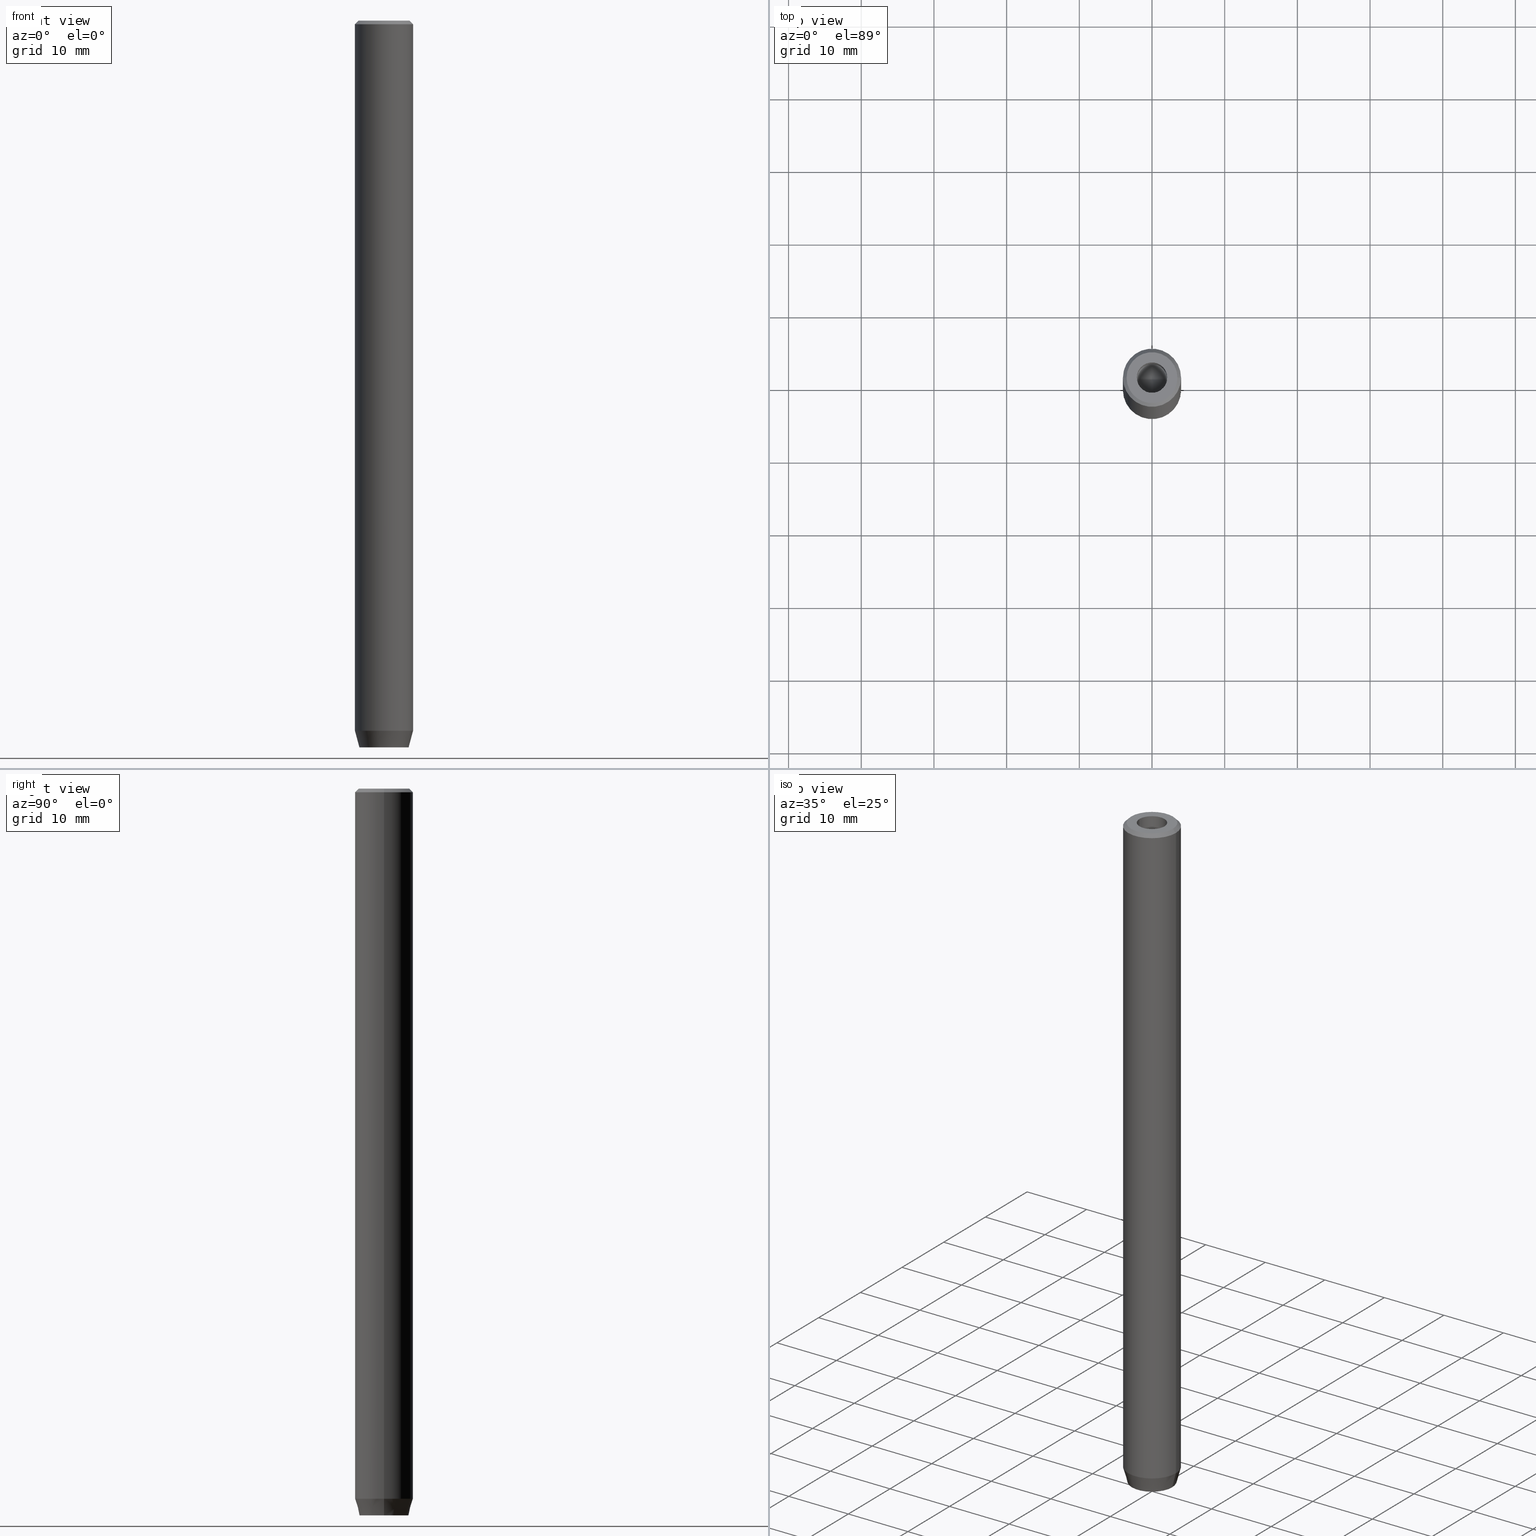
[diagram: canonical four-view strip — front | top / right | iso, engineering-drawing reading convention]
A machine part, canonical four-view strip (front | top / right | iso — engineering-drawing reading convention). The complete STEP part file that produces these views, byte-faithful:
ISO-10303-21;
HEADER;
FILE_DESCRIPTION (( 'STEP AP203' ),
    '1' );
FILE_NAME ('45e9.STEP',
    '2024-01-02T23:08:19',
    ( '' ),
    ( '' ),
    'SwSTEP 2.0',
    'SolidWorks 2019',
    '' );
FILE_SCHEMA (( 'CONFIG_CONTROL_DESIGN' ));
ENDSEC;

DATA;
#1 = PERSON_AND_ORGANIZATION ( #509, #557 ) ;
#2 = ORIENTED_EDGE ( 'NONE', *, *, #280, .T. ) ;
#3 = AXIS2_PLACEMENT_3D ( 'NONE', #445, #170, #305 ) ;
#4 = EDGE_CURVE ( 'NONE', #224, #239, #467, .T. ) ;
#5 = DIRECTION ( 'NONE',  ( -0.8660254037844388186, -0.4999999999999996114, 0.000000000000000000 ) ) ;
#6 = VERTEX_POINT ( 'NONE', #576 ) ;
#7 = EDGE_LOOP ( 'NONE', ( #94, #96, #442, #324 ) ) ;
#8 = VERTEX_POINT ( 'NONE', #33 ) ;
#9 = ORIENTED_EDGE ( 'NONE', *, *, #221, .F. ) ;
#10 = EDGE_CURVE ( 'NONE', #6, #460, #334, .T. ) ;
#11 = CARTESIAN_POINT ( 'NONE',  ( 3.500000000000016875, 4.592425496802584819E-16, 0.000000000000000000 ) ) ;
#12 = AXIS2_PLACEMENT_3D ( 'NONE', #235, #277, #195 ) ;
#13 = VECTOR ( 'NONE', #179, 1000.000000000000000 ) ;
#14 = LINE ( 'NONE', #104, #549 ) ;
#15 = CARTESIAN_POINT ( 'NONE',  ( 2.000000000000000888, -1.154700538379252572, -100.0000000000000000 ) ) ;
#16 = PLANE ( 'NONE',  #199 ) ;
#17 = CARTESIAN_POINT ( 'NONE',  ( 1.000000000000000444, 1.732050807568877637, -97.20000000000000284 ) ) ;
#18 = CARTESIAN_POINT ( 'NONE',  ( -2.099999999999996980, 2.571758278209438013E-16, -12.50000000000000000 ) ) ;
#19 = CC_DESIGN_PERSON_AND_ORGANIZATION_ASSIGNMENT ( #190, #53, ( #125 ) ) ;
#20 = ORIENTED_EDGE ( 'NONE', *, *, #569, .F. ) ;
#21 = APPLICATION_CONTEXT ( 'configuration controlled 3d designs of mechanical parts and assemblies' ) ;
#22 = DIRECTION ( 'NONE',  ( 5.633679745264339711E-16, 1.000000000000000000, 0.000000000000000000 ) ) ;
#23 = DIRECTION ( 'NONE',  ( -0.8660254037844385966, 0.5000000000000001110, 0.000000000000000000 ) ) ;
#24 = CARTESIAN_POINT ( 'NONE',  ( 2.168404344971008868E-16, -2.309401076758503812, -97.20000000000000284 ) ) ;
#25 = ORIENTED_EDGE ( 'NONE', *, *, #40, .T. ) ;
#26 = ADVANCED_FACE ( 'NONE', ( #380 ), #16, .F. ) ;
#27 = FACE_OUTER_BOUND ( 'NONE', #7, .T. ) ;
#28 = AXIS2_PLACEMENT_3D ( 'NONE', #297, #523, #111 ) ;
#29 = CARTESIAN_POINT ( 'NONE',  ( 3.500000000000016875, 4.286263797015757302E-16, 0.000000000000000000 ) ) ;
#30 = DIRECTION ( 'NONE',  ( 1.000000000000000000, 0.000000000000000000, 0.000000000000000000 ) ) ;
#31 = ORIENTED_EDGE ( 'NONE', *, *, #444, .T. ) ;
#32 = MANIFOLD_SOLID_BREP ( 'Vrt�k z�vitn�ku pro M5 z�vit1', #302 ) ;
#33 = CARTESIAN_POINT ( 'NONE',  ( -4.000000000000000000, 4.898587196589412829E-16, -97.70000000000000284 ) ) ;
#34 = CARTESIAN_POINT ( 'NONE',  ( 1.000000000000000444, 1.732050807568877637, -97.20000000000000284 ) ) ;
#35 = VECTOR ( 'NONE', #22, 1000.000000000000000 ) ;
#36 = VERTEX_POINT ( 'NONE', #216 ) ;
#37 = LINE ( 'NONE', #132, #329 ) ;
#38 = ORIENTED_EDGE ( 'NONE', *, *, #530, .T. ) ;
#39 = VERTEX_POINT ( 'NONE', #18 ) ;
#40 = EDGE_CURVE ( 'NONE', #460, #314, #518, .T. ) ;
#41 = EDGE_LOOP ( 'NONE', ( #175, #351, #395 ) ) ;
#42 = LINE ( 'NONE', #34, #347 ) ;
#43 = APPROVAL_ROLE ( '' ) ;
#44 = EDGE_CURVE ( 'NONE', #573, #8, #208, .T. ) ;
#45 = CONICAL_SURFACE ( 'NONE', #168, 4.000000000000000000, 0.2617993877991497964 ) ;
#46 = DIRECTION ( 'NONE',  ( -0.000000000000000000, -0.000000000000000000, 1.000000000000000000 ) ) ;
#47 = CC_DESIGN_APPROVAL ( #430, ( #456 ) ) ;
#48 = AXIS2_PLACEMENT_3D ( 'NONE', #159, #493, #521 ) ;
#49 = DIRECTION ( 'NONE',  ( 1.000000000000000000, 0.000000000000000000, 0.000000000000000000 ) ) ;
#50 = AXIS2_PLACEMENT_3D ( 'NONE', #526, #377, #477 ) ;
#51 = DATE_AND_TIME ( #325, #147 ) ;
#52 = ADVANCED_BREP_SHAPE_REPRESENTATION ( '45e9', ( #32, #110 ), #220 ) ;
#53 = PERSON_AND_ORGANIZATION_ROLE ( 'design_owner' ) ;
#54 = ADVANCED_FACE ( 'NONE', ( #390 ), #310, .T. ) ;
#55 = PERSON_AND_ORGANIZATION ( #509, #557 ) ;
#56 = ORIENTED_EDGE ( 'NONE', *, *, #10, .T. ) ;
#57 = CIRCLE ( 'NONE', #3, 3.383716857408417766 ) ;
#58 = AXIS2_PLACEMENT_3D ( 'NONE', #212, #288, #343 ) ;
#59 = DATE_AND_TIME ( #135, #78 ) ;
#60 = ORIENTED_EDGE ( 'NONE', *, *, #308, .T. ) ;
#61 = EDGE_LOOP ( 'NONE', ( #450, #164, #9, #249 ) ) ;
#62 = DIRECTION ( 'NONE',  ( -0.000000000000000000, -0.000000000000000000, 1.000000000000000000 ) ) ;
#63 = ADVANCED_FACE ( 'NONE', ( #163 ), #482, .T. ) ;
#64 = PLANE ( 'NONE',  #79 ) ;
#65 = AXIS2_PLACEMENT_3D ( 'NONE', #172, #499, #268 ) ;
#66 = AXIS2_PLACEMENT_3D ( 'NONE', #223, #503, #495 ) ;
#67 = LINE ( 'NONE', #426, #440 ) ;
#68 = CARTESIAN_POINT ( 'NONE',  ( 2.099999999999996980, 0.000000000000000000, -12.50000000000000000 ) ) ;
#69 = ORIENTED_EDGE ( 'NONE', *, *, #4, .F. ) ;
#70 = FACE_OUTER_BOUND ( 'NONE', #381, .T. ) ;
#71 = DIRECTION ( 'NONE',  ( -0.000000000000000000, -0.000000000000000000, 1.000000000000000000 ) ) ;
#72 = ADVANCED_FACE ( 'NONE', ( #114 ), #244, .F. ) ;
#73 = CARTESIAN_POINT ( 'NONE',  ( -1.999999999999997780, 1.154700538379253238, -97.20000000000000284 ) ) ;
#74 = CARTESIAN_POINT ( 'NONE',  ( 0.000000000000000000, 0.000000000000000000, -12.50000000000000000 ) ) ;
#75 = ADVANCED_FACE ( 'NONE', ( #118 ), #441, .F. ) ;
#76 = DIRECTION ( 'NONE',  ( -0.5000000000000000000, -0.8660254037844387076, 0.000000000000000000 ) ) ;
#77 = VERTEX_POINT ( 'NONE', #454 ) ;
#78 = LOCAL_TIME ( 0, 8, 19.00000000000000000, #231 ) ;
#79 = AXIS2_PLACEMENT_3D ( 'NONE', #379, #559, #561 ) ;
#80 = CARTESIAN_POINT ( 'NONE',  ( -1.999999999999997780, 1.154700538379253238, -97.20000000000000284 ) ) ;
#81 = DIRECTION ( 'NONE',  ( 0.000000000000000000, 0.000000000000000000, -1.000000000000000000 ) ) ;
#82 = ORIENTED_EDGE ( 'NONE', *, *, #40, .F. ) ;
#83 = CARTESIAN_POINT ( 'NONE',  ( -3.500000000000016875, 0.000000000000000000, 0.000000000000000000 ) ) ;
#84 = DIRECTION ( 'NONE',  ( 0.000000000000000000, -0.000000000000000000, 1.000000000000000000 ) ) ;
#85 = CIRCLE ( 'NONE', #263, 2.099999999999996980 ) ;
#86 = DIRECTION ( 'NONE',  ( -1.000000000000000000, 0.000000000000000000, 0.000000000000000000 ) ) ;
#87 = ORIENTED_EDGE ( 'NONE', *, *, #153, .T. ) ;
#88 = PERSON_AND_ORGANIZATION_ROLE ( 'design_supplier' ) ;
#89 = FACE_OUTER_BOUND ( 'NONE', #556, .T. ) ;
#90 = ORIENTED_EDGE ( 'NONE', *, *, #221, .T. ) ;
#91 = FACE_OUTER_BOUND ( 'NONE', #404, .T. ) ;
#92 = VECTOR ( 'NONE', #5, 1000.000000000000114 ) ;
#93 = EDGE_CURVE ( 'NONE', #77, #192, #169, .T. ) ;
#94 = ORIENTED_EDGE ( 'NONE', *, *, #308, .F. ) ;
#95 = SECURITY_CLASSIFICATION_LEVEL ( 'unclassified' ) ;
#96 = ORIENTED_EDGE ( 'NONE', *, *, #575, .T. ) ;
#97 = DIRECTION ( 'NONE',  ( 0.000000000000000000, -1.000000000000000000, 0.000000000000000000 ) ) ;
#98 = APPROVAL_ROLE ( '' ) ;
#99 = VERTEX_POINT ( 'NONE', #306 ) ;
#100 = VECTOR ( 'NONE', #140, 999.9999999999998863 ) ;
#101 = ORIENTED_EDGE ( 'NONE', *, *, #335, .F. ) ;
#102 = CARTESIAN_POINT ( 'NONE',  ( 0.000000000000000000, 0.000000000000000000, -1.990051048614449116E-16 ) ) ;
#103 = ADVANCED_FACE ( 'NONE', ( #541, #451 ), #311, .T. ) ;
#104 = CARTESIAN_POINT ( 'NONE',  ( -4.000000000000000000, 4.898587196589412829E-16, 0.000000000000000000 ) ) ;
#105 = DIRECTION ( 'NONE',  ( 0.7071067811865376918, 8.659560562354813296E-17, -0.7071067811865574537 ) ) ;
#106 = CARTESIAN_POINT ( 'NONE',  ( 0.000000000000000000, 0.000000000000000000, -97.70000000000000284 ) ) ;
#107 = DIRECTION ( 'NONE',  ( 1.000000000000000000, 0.000000000000000000, 0.000000000000000000 ) ) ;
#108 = LOCAL_TIME ( 0, 8, 19.00000000000000000, #357 ) ;
#109 = DIRECTION ( 'NONE',  ( -0.000000000000000000, -0.000000000000000000, -1.000000000000000000 ) ) ;
#110 = AXIS2_PLACEMENT_3D ( 'NONE', #139, #550, #461 ) ;
#111 = DIRECTION ( 'NONE',  ( -1.000000000000000000, 0.000000000000000000, 0.000000000000000000 ) ) ;
#112 = APPROVAL ( #452, 'NEUR�EN�' ) ;
#113 = LINE ( 'NONE', #250, #316 ) ;
#114 = FACE_OUTER_BOUND ( 'NONE', #230, .T. ) ;
#115 = VERTEX_POINT ( 'NONE', #501 ) ;
#116 = DIRECTION ( 'NONE',  ( 1.000000000000000000, 0.000000000000000000, 0.000000000000000000 ) ) ;
#117 = CARTESIAN_POINT ( 'NONE',  ( -1.999999999999998668, -1.154700538379252572, -100.0000000000000000 ) ) ;
#118 = FACE_OUTER_BOUND ( 'NONE', #181, .T. ) ;
#119 = ORIENTED_EDGE ( 'NONE', *, *, #44, .T. ) ;
#120 = LINE ( 'NONE', #68, #278 ) ;
#121 = VECTOR ( 'NONE', #436, 1000.000000000000114 ) ;
#122 = DIRECTION ( 'NONE',  ( 1.000000000000000000, 0.000000000000000000, 0.000000000000000000 ) ) ;
#123 = AXIS2_PLACEMENT_3D ( 'NONE', #102, #438, #154 ) ;
#124 = CARTESIAN_POINT ( 'NONE',  ( 0.000000000000000000, 0.000000000000000000, 0.000000000000000000 ) ) ;
#125 = PRODUCT ( '45e9', '45e9', '', ( #365 ) ) ;
#126 =( LENGTH_UNIT ( ) NAMED_UNIT ( * ) SI_UNIT ( .MILLI., .METRE. ) );
#127 = ORIENTED_EDGE ( 'NONE', *, *, #174, .F. ) ;
#128 = ORIENTED_EDGE ( 'NONE', *, *, #371, .F. ) ;
#129 = ADVANCED_FACE ( 'NONE', ( #91 ), #241, .T. ) ;
#130 = APPROVAL_DATE_TIME ( #227, #191 ) ;
#131 = VERTEX_POINT ( 'NONE', #356 ) ;
#132 = CARTESIAN_POINT ( 'NONE',  ( 1.000000000000000444, 1.732050807568877637, -100.0000000000000000 ) ) ;
#133 = VERTEX_POINT ( 'NONE', #260 ) ;
#134 = CC_DESIGN_DATE_AND_TIME_ASSIGNMENT ( #51, #313, ( #504 ) ) ;
#135 = CALENDAR_DATE ( 2024, 3, 1 ) ;
#136 = VECTOR ( 'NONE', #341, 1000.000000000000000 ) ;
#137 = DIRECTION ( 'NONE',  ( 0.000000000000000000, 0.000000000000000000, -1.000000000000000000 ) ) ;
#138 = AXIS2_PLACEMENT_3D ( 'NONE', #74, #527, #439 ) ;
#139 = CARTESIAN_POINT ( 'NONE',  ( 0.000000000000000000, 0.000000000000000000, 0.000000000000000000 ) ) ;
#140 = DIRECTION ( 'NONE',  ( -0.8660254037844387076, 0.5000000000000001110, 0.000000000000000000 ) ) ;
#141 = CARTESIAN_POINT ( 'NONE',  ( 2.000000000000000888, 0.000000000000000000, -97.20000000000000284 ) ) ;
#142 = ORIENTED_EDGE ( 'NONE', *, *, #538, .F. ) ;
#143 = ADVANCED_FACE ( 'NONE', ( #585 ), #579, .F. ) ;
#144 = ORIENTED_EDGE ( 'NONE', *, *, #258, .T. ) ;
#145 = DIRECTION ( 'NONE',  ( -0.000000000000000000, -0.000000000000000000, 1.000000000000000000 ) ) ;
#146 = CARTESIAN_POINT ( 'NONE',  ( -2.099999999999996980, 2.571758278209438013E-16, -12.50000000000000000 ) ) ;
#147 = LOCAL_TIME ( 0, 8, 19.00000000000000000, #233 ) ;
#148 = ORIENTED_EDGE ( 'NONE', *, *, #444, .F. ) ;
#149 = CARTESIAN_POINT ( 'NONE',  ( 2.000000000000000888, 0.000000000000000000, -100.0000000000000000 ) ) ;
#150 = CARTESIAN_POINT ( 'NONE',  ( 0.000000000000000000, 0.000000000000000000, -1.990051048614449116E-16 ) ) ;
#151 = DIRECTION ( 'NONE',  ( -0.000000000000000000, -0.000000000000000000, 1.000000000000000000 ) ) ;
#152 = DIRECTION ( 'NONE',  ( -0.000000000000000000, -0.000000000000000000, -1.000000000000000000 ) ) ;
#153 = EDGE_CURVE ( 'NONE', #77, #437, #42, .T. ) ;
#154 = DIRECTION ( 'NONE',  ( 1.000000000000000000, 0.000000000000000000, 0.000000000000000000 ) ) ;
#155 = CARTESIAN_POINT ( 'NONE',  ( -4.000000000000000000, 4.898587196589412829E-16, -0.4999999999999970024 ) ) ;
#156 = DIRECTION ( 'NONE',  ( -0.8660254037844387076, 0.5000000000000001110, 0.000000000000000000 ) ) ;
#157 = AXIS2_PLACEMENT_3D ( 'NONE', #106, #338, #30 ) ;
#158 = LINE ( 'NONE', #197, #136 ) ;
#159 = CARTESIAN_POINT ( 'NONE',  ( 0.000000000000000000, 0.000000000000000000, -0.4999999999999970024 ) ) ;
#160 = ORIENTED_EDGE ( 'NONE', *, *, #270, .F. ) ;
#161 = CARTESIAN_POINT ( 'NONE',  ( 0.000000000000000000, 0.000000000000000000, -12.50000000000000000 ) ) ;
#162 = DIRECTION ( 'NONE',  ( 0.2588190451025210725, 0.000000000000000000, 0.9659258262890680902 ) ) ;
#163 = FACE_OUTER_BOUND ( 'NONE', #416, .T. ) ;
#164 = ORIENTED_EDGE ( 'NONE', *, *, #323, .F. ) ;
#165 = FACE_BOUND ( 'NONE', #448, .T. ) ;
#166 = AXIS2_PLACEMENT_3D ( 'NONE', #539, #400, #49 ) ;
#167 = EDGE_LOOP ( 'NONE', ( #128, #184, #213, #187 ) ) ;
#168 = AXIS2_PLACEMENT_3D ( 'NONE', #336, #151, #116 ) ;
#169 = LINE ( 'NONE', #447, #13 ) ;
#170 = DIRECTION ( 'NONE',  ( -0.000000000000000000, -0.000000000000000000, 1.000000000000000000 ) ) ;
#171 = ORIENTED_EDGE ( 'NONE', *, *, #174, .T. ) ;
#172 = CARTESIAN_POINT ( 'NONE',  ( 0.000000000000000000, 0.000000000000000000, 0.000000000000000000 ) ) ;
#173 =( NAMED_UNIT ( * ) PLANE_ANGLE_UNIT ( ) SI_UNIT ( $, .RADIAN. ) );
#174 = EDGE_CURVE ( 'NONE', #194, #312, #200, .T. ) ;
#175 = ORIENTED_EDGE ( 'NONE', *, *, #215, .F. ) ;
#176 = CALENDAR_DATE ( 2024, 3, 1 ) ;
#177 = EDGE_LOOP ( 'NONE', ( #564, #127, #417, #69 ) ) ;
#178 = AXIS2_PLACEMENT_3D ( 'NONE', #490, #295, #485 ) ;
#179 = DIRECTION ( 'NONE',  ( -0.000000000000000000, -0.000000000000000000, -1.000000000000000000 ) ) ;
#180 = PERSON_AND_ORGANIZATION ( #509, #557 ) ;
#181 = EDGE_LOOP ( 'NONE', ( #424, #531, #510, #2 ) ) ;
#182 = DIRECTION ( 'NONE',  ( -0.8571673007021116675, 1.049727191138617833E-16, 0.5150380749100552658 ) ) ;
#183 = EDGE_CURVE ( 'NONE', #192, #36, #37, .T. ) ;
#184 = ORIENTED_EDGE ( 'NONE', *, *, #433, .F. ) ;
#185 = CALENDAR_DATE ( 2024, 3, 1 ) ;
#186 = CARTESIAN_POINT ( 'NONE',  ( 0.000000000000000000, 0.000000000000000000, -97.20000000000000284 ) ) ;
#187 = ORIENTED_EDGE ( 'NONE', *, *, #238, .T. ) ;
#188 = ADVANCED_FACE ( 'NONE', ( #266 ), #536, .T. ) ;
#189 = DIRECTION ( 'NONE',  ( 0.8660254037844388186, 0.4999999999999996669, 0.000000000000000000 ) ) ;
#190 = PERSON_AND_ORGANIZATION ( #509, #557 ) ;
#191 = APPROVAL ( #459, 'NEUR�EN�' ) ;
#192 = VERTEX_POINT ( 'NONE', #309 ) ;
#193 = ORIENTED_EDGE ( 'NONE', *, *, #368, .F. ) ;
#194 = VERTEX_POINT ( 'NONE', #229 ) ;
#195 = DIRECTION ( 'NONE',  ( 1.000000000000000000, 0.000000000000000000, 0.000000000000000000 ) ) ;
#196 = VERTEX_POINT ( 'NONE', #498 ) ;
#197 = CARTESIAN_POINT ( 'NONE',  ( 2.000000000000000888, -1.154700538379252572, -97.20000000000000284 ) ) ;
#198 = PRODUCT_DEFINITION_FORMATION_WITH_SPECIFIED_SOURCE ( 'LIBOVOLN�', '', #125, .NOT_KNOWN. ) ;
#199 = AXIS2_PLACEMENT_3D ( 'NONE', #384, #434, #474 ) ;
#200 = CIRCLE ( 'NONE', #533, 3.500000000000016875 ) ;
#201 = CARTESIAN_POINT ( 'NONE',  ( 0.9999999999999997780, -1.732050807568878747, -97.20000000000000284 ) ) ;
#202 = DIRECTION ( 'NONE',  ( -1.000000000000000000, 5.633679745264339711E-16, 0.000000000000000000 ) ) ;
#203 = ADVANCED_FACE ( 'NONE', ( #165, #348 ), #534, .T. ) ;
#204 = ORIENTED_EDGE ( 'NONE', *, *, #577, .T. ) ;
#205 = LINE ( 'NONE', #149, #361 ) ;
#206 = CARTESIAN_POINT ( 'NONE',  ( 0.9999999999999997780, -1.732050807568878747, -100.0000000000000000 ) ) ;
#207 = ORIENTED_EDGE ( 'NONE', *, *, #492, .F. ) ;
#208 = CIRCLE ( 'NONE', #157, 4.000000000000000000 ) ;
#209 = CC_DESIGN_PERSON_AND_ORGANIZATION_ASSIGNMENT ( #514, #88, ( #198 ) ) ;
#210 = LINE ( 'NONE', #289, #35 ) ;
#211 = LINE ( 'NONE', #563, #245 ) ;
#212 = CARTESIAN_POINT ( 'NONE',  ( 0.000000000000000000, 0.000000000000000000, -97.70000000000000284 ) ) ;
#213 = ORIENTED_EDGE ( 'NONE', *, *, #569, .T. ) ;
#214 = ORIENTED_EDGE ( 'NONE', *, *, #238, .F. ) ;
#215 = EDGE_CURVE ( 'NONE', #582, #39, #234, .T. ) ;
#216 = CARTESIAN_POINT ( 'NONE',  ( 2.000000000000000888, 1.154700538379251462, -100.0000000000000000 ) ) ;
#217 = ORIENTED_EDGE ( 'NONE', *, *, #44, .F. ) ;
#218 = DIRECTION ( 'NONE',  ( -0.7071067811865376918, 0.000000000000000000, -0.7071067811865574537 ) ) ;
#219 = ORIENTED_EDGE ( 'NONE', *, *, #273, .T. ) ;
#220 =( GEOMETRIC_REPRESENTATION_CONTEXT ( 3 ) GLOBAL_UNCERTAINTY_ASSIGNED_CONTEXT ( ( #572 ) ) GLOBAL_UNIT_ASSIGNED_CONTEXT ( ( #126, #173, #500 ) ) REPRESENTATION_CONTEXT ( 'NONE', 'WORKASPACE' ) );
#221 = EDGE_CURVE ( 'NONE', #437, #196, #364, .T. ) ;
#222 = EDGE_CURVE ( 'NONE', #582, #99, #120, .T. ) ;
#223 = CARTESIAN_POINT ( 'NONE',  ( 0.000000000000000000, 3.383716857408417766, -100.0000000000000000 ) ) ;
#224 = VERTEX_POINT ( 'NONE', #376 ) ;
#225 = DIRECTION ( 'NONE',  ( 0.8660254037844385966, -0.5000000000000001110, 0.000000000000000000 ) ) ;
#226 = CONICAL_SURFACE ( 'NONE', #320, 2.099999999999996980, 1.029744258676653201 ) ;
#227 = DATE_AND_TIME ( #322, #317 ) ;
#228 = CARTESIAN_POINT ( 'NONE',  ( -2.099999999999997868, 2.571758278209438999E-16, 0.000000000000000000 ) ) ;
#229 = CARTESIAN_POINT ( 'NONE',  ( -3.500000000000016875, 0.000000000000000000, 0.000000000000000000 ) ) ;
#230 = EDGE_LOOP ( 'NONE', ( #25, #470, #293, #56 ) ) ;
#231 = COORDINATED_UNIVERSAL_TIME_OFFSET ( 1, 0, .AHEAD. ) ;
#232 = ADVANCED_FACE ( 'NONE', ( #70 ), #423, .F. ) ;
#233 = COORDINATED_UNIVERSAL_TIME_OFFSET ( 1, 0, .AHEAD. ) ;
#234 = LINE ( 'NONE', #146, #505 ) ;
#235 = CARTESIAN_POINT ( 'NONE',  ( 0.000000000000000000, 0.000000000000000000, 0.000000000000000000 ) ) ;
#236 = ORIENTED_EDGE ( 'NONE', *, *, #508, .T. ) ;
#237 = EDGE_LOOP ( 'NONE', ( #236, #272, #261, #469 ) ) ;
#238 = EDGE_CURVE ( 'NONE', #115, #133, #548, .T. ) ;
#239 = VERTEX_POINT ( 'NONE', #155 ) ;
#240 = LINE ( 'NONE', #560, #565 ) ;
#241 = CONICAL_SURFACE ( 'NONE', #405, 3.500000000000016875, 0.7853981633974344012 ) ;
#242 = CC_DESIGN_PERSON_AND_ORGANIZATION_ASSIGNMENT ( #1, #418, ( #504 ) ) ;
#243 = CARTESIAN_POINT ( 'NONE',  ( -1.999999999999998668, -1.154700538379252572, -97.20000000000000284 ) ) ;
#244 = PLANE ( 'NONE',  #256 ) ;
#245 = VECTOR ( 'NONE', #252, 1000.000000000000000 ) ;
#246 = DIRECTION ( 'NONE',  ( -0.000000000000000000, -0.000000000000000000, -1.000000000000000000 ) ) ;
#247 = APPLICATION_CONTEXT ( 'configuration controlled 3d designs of mechanical parts and assemblies' ) ;
#248 = DIRECTION ( 'NONE',  ( 0.5000000000000001110, 0.8660254037844385966, -0.000000000000000000 ) ) ;
#249 = ORIENTED_EDGE ( 'NONE', *, *, #492, .T. ) ;
#250 = CARTESIAN_POINT ( 'NONE',  ( -1.999999999999998668, -1.154700538379252572, -97.20000000000000284 ) ) ;
#251 = EDGE_LOOP ( 'NONE', ( #144, #415, #193, #366 ) ) ;
#252 = DIRECTION ( 'NONE',  ( -0.000000000000000000, -0.000000000000000000, 1.000000000000000000 ) ) ;
#253 = VECTOR ( 'NONE', #218, 999.9999999999998863 ) ;
#254 = DIRECTION ( 'NONE',  ( 1.000000000000000000, 0.000000000000000000, 0.000000000000000000 ) ) ;
#255 = ORIENTED_EDGE ( 'NONE', *, *, #508, .F. ) ;
#256 = AXIS2_PLACEMENT_3D ( 'NONE', #528, #76, #431 ) ;
#257 = LINE ( 'NONE', #389, #446 ) ;
#258 = EDGE_CURVE ( 'NONE', #307, #460, #298, .T. ) ;
#259 = ORIENTED_EDGE ( 'NONE', *, *, #371, .T. ) ;
#260 = CARTESIAN_POINT ( 'NONE',  ( -2.099999999999998757, 2.571758278209439985E-16, -1.990051048614449116E-16 ) ) ;
#261 = ORIENTED_EDGE ( 'NONE', *, *, #273, .F. ) ;
#262 = DIRECTION ( 'NONE',  ( 1.000000000000000000, 0.000000000000000000, 0.000000000000000000 ) ) ;
#263 = AXIS2_PLACEMENT_3D ( 'NONE', #161, #286, #471 ) ;
#264 = VECTOR ( 'NONE', #109, 1000.000000000000000 ) ;
#265 = ORIENTED_EDGE ( 'NONE', *, *, #575, .F. ) ;
#266 = FACE_OUTER_BOUND ( 'NONE', #409, .T. ) ;
#267 = ADVANCED_FACE ( 'NONE', ( #473 ), #64, .F. ) ;
#268 = DIRECTION ( 'NONE',  ( 1.000000000000000000, 0.000000000000000000, 0.000000000000000000 ) ) ;
#269 = VERTEX_POINT ( 'NONE', #520 ) ;
#270 = EDGE_CURVE ( 'NONE', #573, #224, #211, .T. ) ;
#271 = DIRECTION ( 'NONE',  ( -1.000000000000000000, 0.000000000000000000, -0.000000000000000000 ) ) ;
#272 = ORIENTED_EDGE ( 'NONE', *, *, #93, .F. ) ;
#273 = EDGE_CURVE ( 'NONE', #284, #77, #568, .T. ) ;
#274 = ORIENTED_EDGE ( 'NONE', *, *, #299, .F. ) ;
#275 = VECTOR ( 'NONE', #162, 1000.000000000000114 ) ;
#276 = LOCAL_TIME ( 0, 8, 19.00000000000000000, #414 ) ;
#277 = DIRECTION ( 'NONE',  ( -0.000000000000000000, -0.000000000000000000, 1.000000000000000000 ) ) ;
#278 = VECTOR ( 'NONE', #479, 1000.000000000000000 ) ;
#279 = PERSON_AND_ORGANIZATION_ROLE ( 'classification_officer' ) ;
#280 = EDGE_CURVE ( 'NONE', #321, #314, #113, .T. ) ;
#281 = EDGE_CURVE ( 'NONE', #312, #224, #517, .T. ) ;
#282 = COORDINATED_UNIVERSAL_TIME_OFFSET ( 1, 0, .AHEAD. ) ;
#283 = CC_DESIGN_SECURITY_CLASSIFICATION ( #456, ( #198 ) ) ;
#284 = VERTEX_POINT ( 'NONE', #80 ) ;
#285 = ORIENTED_EDGE ( 'NONE', *, *, #538, .T. ) ;
#286 = DIRECTION ( 'NONE',  ( -0.000000000000000000, -0.000000000000000000, 1.000000000000000000 ) ) ;
#287 = CARTESIAN_POINT ( 'NONE',  ( -4.000000000000000000, 4.898587196589412829E-16, -97.70000000000000284 ) ) ;
#288 = DIRECTION ( 'NONE',  ( -0.000000000000000000, -0.000000000000000000, 1.000000000000000000 ) ) ;
#289 = CARTESIAN_POINT ( 'NONE',  ( -1.999999999999998224, 1.126735949052866956E-15, -97.20000000000000284 ) ) ;
#290 = CIRCLE ( 'NONE', #506, 4.000000000000000000 ) ;
#291 = AXIS2_PLACEMENT_3D ( 'NONE', #432, #519, #107 ) ;
#292 = CARTESIAN_POINT ( 'NONE',  ( -1.000000000000000222, -1.732050807568877637, -100.0000000000000000 ) ) ;
#293 = ORIENTED_EDGE ( 'NONE', *, *, #375, .F. ) ;
#294 = FACE_OUTER_BOUND ( 'NONE', #177, .T. ) ;
#295 = DIRECTION ( 'NONE',  ( 0.000000000000000000, 0.000000000000000000, -1.000000000000000000 ) ) ;
#296 = EDGE_LOOP ( 'NONE', ( #171, #513 ) ) ;
#297 = CARTESIAN_POINT ( 'NONE',  ( 0.000000000000000000, 0.000000000000000000, 0.000000000000000000 ) ) ;
#298 = LINE ( 'NONE', #206, #121 ) ;
#299 = EDGE_CURVE ( 'NONE', #239, #224, #491, .T. ) ;
#300 = CARTESIAN_POINT ( 'NONE',  ( -1.000000000000000444, 1.732050807568877637, -97.20000000000000284 ) ) ;
#301 = VECTOR ( 'NONE', #435, 1000.000000000000000 ) ;
#302 = CLOSED_SHELL ( 'NONE', ( #342, #401, #129, #54, #188, #103, #203, #63, #462, #478, #267, #75, #72, #340, #26, #232, #362, #331, #143 ) ) ;
#303 = ORIENTED_EDGE ( 'NONE', *, *, #281, .T. ) ;
#304 = VECTOR ( 'NONE', #367, 1000.000000000000000 ) ;
#305 = DIRECTION ( 'NONE',  ( 1.000000000000000000, 0.000000000000000000, 0.000000000000000000 ) ) ;
#306 = CARTESIAN_POINT ( 'NONE',  ( 2.099999999999996980, 0.000000000000000000, -12.50000000000000000 ) ) ;
#307 = VERTEX_POINT ( 'NONE', #15 ) ;
#308 = EDGE_CURVE ( 'NONE', #269, #8, #330, .T. ) ;
#309 = CARTESIAN_POINT ( 'NONE',  ( 0.000000000000000000, 2.309401076758503812, -100.0000000000000000 ) ) ;
#310 = CONICAL_SURFACE ( 'NONE', #58, 4.000000000000000000, 0.2617993877991497964 ) ;
#311 = PLANE ( 'NONE',  #66 ) ;
#312 = VERTEX_POINT ( 'NONE', #11 ) ;
#313 = DATE_TIME_ROLE ( 'creation_date' ) ;
#314 = VERTEX_POINT ( 'NONE', #117 ) ;
#315 = SHAPE_DEFINITION_REPRESENTATION ( #353, #52 ) ;
#316 = VECTOR ( 'NONE', #152, 1000.000000000000000 ) ;
#317 = LOCAL_TIME ( 0, 8, 19.00000000000000000, #282 ) ;
#318 = APPROVAL_STATUS ( 'not_yet_approved' ) ;
#319 = FACE_OUTER_BOUND ( 'NONE', #326, .T. ) ;
#320 = AXIS2_PLACEMENT_3D ( 'NONE', #453, #46, #372 ) ;
#321 = VERTEX_POINT ( 'NONE', #243 ) ;
#322 = CALENDAR_DATE ( 2024, 3, 1 ) ;
#323 = EDGE_CURVE ( 'NONE', #196, #307, #158, .T. ) ;
#324 = ORIENTED_EDGE ( 'NONE', *, *, #399, .F. ) ;
#325 = CALENDAR_DATE ( 2024, 3, 1 ) ;
#326 = EDGE_LOOP ( 'NONE', ( #464, #259, #31, #20 ) ) ;
#327 = AXIS2_PLACEMENT_3D ( 'NONE', #443, #392, #122 ) ;
#328 = DIRECTION ( 'NONE',  ( 1.000000000000000000, 0.000000000000000000, 0.000000000000000000 ) ) ;
#329 = VECTOR ( 'NONE', #398, 1000.000000000000000 ) ;
#330 = LINE ( 'NONE', #287, #393 ) ;
#331 = ADVANCED_FACE ( 'NONE', ( #374 ), #370, .F. ) ;
#332 = DIRECTION ( 'NONE',  ( 5.633679745264339711E-16, 1.000000000000000000, 0.000000000000000000 ) ) ;
#333 = DIRECTION ( 'NONE',  ( -0.000000000000000000, -0.000000000000000000, 1.000000000000000000 ) ) ;
#334 = LINE ( 'NONE', #24, #264 ) ;
#335 = EDGE_CURVE ( 'NONE', #131, #573, #387, .T. ) ;
#336 = CARTESIAN_POINT ( 'NONE',  ( 0.000000000000000000, 0.000000000000000000, -97.70000000000000284 ) ) ;
#337 = CIRCLE ( 'NONE', #291, 3.500000000000016875 ) ;
#338 = DIRECTION ( 'NONE',  ( -0.000000000000000000, -0.000000000000000000, 1.000000000000000000 ) ) ;
#339 = ORIENTED_EDGE ( 'NONE', *, *, #4, .T. ) ;
#340 = ADVANCED_FACE ( 'NONE', ( #344 ), #429, .F. ) ;
#341 = DIRECTION ( 'NONE',  ( -0.000000000000000000, -0.000000000000000000, -1.000000000000000000 ) ) ;
#342 = ADVANCED_FACE ( 'NONE', ( #319 ), #420, .F. ) ;
#343 = DIRECTION ( 'NONE',  ( 1.000000000000000000, 0.000000000000000000, 0.000000000000000000 ) ) ;
#344 = FACE_OUTER_BOUND ( 'NONE', #251, .T. ) ;
#345 = DIRECTION ( 'NONE',  ( -5.633679745264339711E-16, -1.000000000000000000, 0.000000000000000000 ) ) ;
#346 = ORIENTED_EDGE ( 'NONE', *, *, #551, .F. ) ;
#347 = VECTOR ( 'NONE', #225, 1000.000000000000000 ) ;
#348 = FACE_OUTER_BOUND ( 'NONE', #296, .T. ) ;
#349 = VECTOR ( 'NONE', #105, 999.9999999999998863 ) ;
#350 = APPLICATION_PROTOCOL_DEFINITION ( 'international standard', 'config_control_design', 1994, #247 ) ;
#351 = ORIENTED_EDGE ( 'NONE', *, *, #222, .T. ) ;
#352 = CC_DESIGN_APPROVAL ( #112, ( #198 ) ) ;
#353 = PRODUCT_DEFINITION_SHAPE ( 'NONE', 'NONE',  #504 ) ;
#354 = VECTOR ( 'NONE', #97, 1000.000000000000000 ) ;
#355 = EDGE_LOOP ( 'NONE', ( #204, #60, #217, #101 ) ) ;
#356 = CARTESIAN_POINT ( 'NONE',  ( 3.383716857408417766, 0.000000000000000000, -100.0000000000000000 ) ) ;
#357 = COORDINATED_UNIVERSAL_TIME_OFFSET ( 1, 0, .AHEAD. ) ;
#358 = LINE ( 'NONE', #228, #304 ) ;
#359 = ORIENTED_EDGE ( 'NONE', *, *, #399, .T. ) ;
#360 = APPROVAL_DATE_TIME ( #59, #112 ) ;
#361 = VECTOR ( 'NONE', #515, 1000.000000000000000 ) ;
#362 = ADVANCED_FACE ( 'NONE', ( #544 ), #411, .T. ) ;
#363 = LINE ( 'NONE', #552, #100 ) ;
#364 = LINE ( 'NONE', #141, #354 ) ;
#365 = MECHANICAL_CONTEXT ( 'NONE', #247, 'mechanical' ) ;
#366 = ORIENTED_EDGE ( 'NONE', *, *, #323, .T. ) ;
#367 = DIRECTION ( 'NONE',  ( -0.000000000000000000, -0.000000000000000000, 1.000000000000000000 ) ) ;
#368 = EDGE_CURVE ( 'NONE', #196, #6, #407, .T. ) ;
#369 = ORIENTED_EDGE ( 'NONE', *, *, #183, .T. ) ;
#370 = CONICAL_SURFACE ( 'NONE', #138, 2.099999999999996980, 1.029744258676653201 ) ;
#371 = EDGE_CURVE ( 'NONE', #39, #133, #358, .T. ) ;
#372 = DIRECTION ( 'NONE',  ( 1.000000000000000000, 0.000000000000000000, 0.000000000000000000 ) ) ;
#373 = CIRCLE ( 'NONE', #123, 2.099999999999998757 ) ;
#374 = FACE_OUTER_BOUND ( 'NONE', #41, .T. ) ;
#375 = EDGE_CURVE ( 'NONE', #6, #321, #363, .T. ) ;
#376 = CARTESIAN_POINT ( 'NONE',  ( 4.000000000000000000, 0.000000000000000000, -0.4999999999999970024 ) ) ;
#377 = DIRECTION ( 'NONE',  ( -0.000000000000000000, -0.000000000000000000, 1.000000000000000000 ) ) ;
#378 = EDGE_LOOP ( 'NONE', ( #255, #522, #82, #537, #385, #397 ) ) ;
#379 = CARTESIAN_POINT ( 'NONE',  ( -1.000000000000000444, 1.732050807568877637, -97.20000000000000284 ) ) ;
#380 = FACE_OUTER_BOUND ( 'NONE', #61, .T. ) ;
#381 = EDGE_LOOP ( 'NONE', ( #369, #207, #480, #391 ) ) ;
#382 = CIRCLE ( 'NONE', #327, 3.383716857408417766 ) ;
#383 = DIRECTION ( 'NONE',  ( 1.000000000000000000, 0.000000000000000000, 0.000000000000000000 ) ) ;
#384 = CARTESIAN_POINT ( 'NONE',  ( 2.000000000000000888, 0.000000000000000000, -97.20000000000000284 ) ) ;
#385 = ORIENTED_EDGE ( 'NONE', *, *, #422, .F. ) ;
#386 = LINE ( 'NONE', #570, #532 ) ;
#387 = LINE ( 'NONE', #571, #275 ) ;
#388 = CARTESIAN_POINT ( 'NONE',  ( -1.999999999999998224, 1.126735949052866956E-15, -97.20000000000000284 ) ) ;
#389 = CARTESIAN_POINT ( 'NONE',  ( 2.099999999999997868, 0.000000000000000000, 0.000000000000000000 ) ) ;
#390 = FACE_OUTER_BOUND ( 'NONE', #355, .T. ) ;
#391 = ORIENTED_EDGE ( 'NONE', *, *, #93, .T. ) ;
#392 = DIRECTION ( 'NONE',  ( -0.000000000000000000, -0.000000000000000000, 1.000000000000000000 ) ) ;
#393 = VECTOR ( 'NONE', #481, 1000.000000000000114 ) ;
#394 = CC_DESIGN_APPROVAL ( #191, ( #504 ) ) ;
#395 = ORIENTED_EDGE ( 'NONE', *, *, #433, .T. ) ;
#396 = AXIS2_PLACEMENT_3D ( 'NONE', #17, #248, #23 ) ;
#397 = ORIENTED_EDGE ( 'NONE', *, *, #183, .F. ) ;
#398 = DIRECTION ( 'NONE',  ( 0.8660254037844385966, -0.5000000000000001110, 0.000000000000000000 ) ) ;
#399 = EDGE_CURVE ( 'NONE', #8, #573, #290, .T. ) ;
#400 = DIRECTION ( 'NONE',  ( -0.000000000000000000, -0.000000000000000000, 1.000000000000000000 ) ) ;
#401 = ADVANCED_FACE ( 'NONE', ( #89 ), #226, .F. ) ;
#402 = ORIENTED_EDGE ( 'NONE', *, *, #375, .T. ) ;
#403 = DIRECTION ( 'NONE',  ( -0.000000000000000000, -0.000000000000000000, 1.000000000000000000 ) ) ;
#404 = EDGE_LOOP ( 'NONE', ( #581, #303, #274, #346 ) ) ;
#405 = AXIS2_PLACEMENT_3D ( 'NONE', #580, #81, #86 ) ;
#406 = PERSON_AND_ORGANIZATION ( #509, #557 ) ;
#407 = LINE ( 'NONE', #587, #92 ) ;
#408 = VERTEX_POINT ( 'NONE', #472 ) ;
#409 = EDGE_LOOP ( 'NONE', ( #119, #285, #512, #160 ) ) ;
#410 = PERSON_AND_ORGANIZATION ( #509, #557 ) ;
#411 = PLANE ( 'NONE',  #487 ) ;
#412 = ORIENTED_EDGE ( 'NONE', *, *, #222, .F. ) ;
#413 = APPROVAL_PERSON_ORGANIZATION ( #466, #430, #43 ) ;
#414 = COORDINATED_UNIVERSAL_TIME_OFFSET ( 1, 0, .AHEAD. ) ;
#415 = ORIENTED_EDGE ( 'NONE', *, *, #10, .F. ) ;
#416 = EDGE_LOOP ( 'NONE', ( #142, #359, #483, #339 ) ) ;
#417 = ORIENTED_EDGE ( 'NONE', *, *, #551, .T. ) ;
#418 = PERSON_AND_ORGANIZATION_ROLE ( 'creator' ) ;
#419 = EDGE_CURVE ( 'NONE', #284, #408, #566, .T. ) ;
#420 = CYLINDRICAL_SURFACE ( 'NONE', #12, 2.099999999999997868 ) ;
#421 = ORIENTED_EDGE ( 'NONE', *, *, #468, .T. ) ;
#422 = EDGE_CURVE ( 'NONE', #36, #307, #205, .T. ) ;
#423 = PLANE ( 'NONE',  #396 ) ;
#424 = ORIENTED_EDGE ( 'NONE', *, *, #545, .T. ) ;
#425 = CONICAL_SURFACE ( 'NONE', #28, 3.500000000000016875, 0.7853981633974344012 ) ;
#426 = CARTESIAN_POINT ( 'NONE',  ( 2.000000000000000888, 1.154700538379251462, -97.20000000000000284 ) ) ;
#427 = VECTOR ( 'NONE', #156, 999.9999999999998863 ) ;
#428 = CIRCLE ( 'NONE', #50, 2.099999999999996980 ) ;
#429 = PLANE ( 'NONE',  #578 ) ;
#430 = APPROVAL ( #318, 'NEUR�EN�' ) ;
#431 = DIRECTION ( 'NONE',  ( 0.8660254037844385966, -0.4999999999999999445, 0.000000000000000000 ) ) ;
#432 = CARTESIAN_POINT ( 'NONE',  ( 0.000000000000000000, 0.000000000000000000, 0.000000000000000000 ) ) ;
#433 = EDGE_CURVE ( 'NONE', #99, #39, #428, .T. ) ;
#434 = DIRECTION ( 'NONE',  ( 1.000000000000000000, 0.000000000000000000, -0.000000000000000000 ) ) ;
#435 = DIRECTION ( 'NONE',  ( -0.000000000000000000, -0.000000000000000000, -1.000000000000000000 ) ) ;
#436 = DIRECTION ( 'NONE',  ( -0.8660254037844388186, -0.4999999999999996114, 0.000000000000000000 ) ) ;
#437 = VERTEX_POINT ( 'NONE', #484 ) ;
#438 = DIRECTION ( 'NONE',  ( -0.000000000000000000, -0.000000000000000000, 1.000000000000000000 ) ) ;
#439 = DIRECTION ( 'NONE',  ( 1.000000000000000000, 0.000000000000000000, 0.000000000000000000 ) ) ;
#440 = VECTOR ( 'NONE', #246, 1000.000000000000000 ) ;
#441 = PLANE ( 'NONE',  #586 ) ;
#442 = ORIENTED_EDGE ( 'NONE', *, *, #335, .T. ) ;
#443 = CARTESIAN_POINT ( 'NONE',  ( 0.000000000000000000, 0.000000000000000000, -100.0000000000000000 ) ) ;
#444 = EDGE_CURVE ( 'NONE', #133, #115, #373, .T. ) ;
#445 = CARTESIAN_POINT ( 'NONE',  ( 0.000000000000000000, 0.000000000000000000, -100.0000000000000000 ) ) ;
#446 = VECTOR ( 'NONE', #583, 1000.000000000000000 ) ;
#447 = CARTESIAN_POINT ( 'NONE',  ( 0.000000000000000000, 2.309401076758503812, -97.20000000000000284 ) ) ;
#448 = EDGE_LOOP ( 'NONE', ( #214, #148 ) ) ;
#449 = DIRECTION ( 'NONE',  ( 1.000000000000000000, 0.000000000000000000, 0.000000000000000000 ) ) ;
#450 = ORIENTED_EDGE ( 'NONE', *, *, #422, .T. ) ;
#451 = FACE_OUTER_BOUND ( 'NONE', #529, .T. ) ;
#452 = APPROVAL_STATUS ( 'not_yet_approved' ) ;
#453 = CARTESIAN_POINT ( 'NONE',  ( 0.000000000000000000, 0.000000000000000000, -12.50000000000000000 ) ) ;
#454 = CARTESIAN_POINT ( 'NONE',  ( 0.000000000000000000, 2.309401076758503812, -97.20000000000000284 ) ) ;
#455 = AXIS2_PLACEMENT_3D ( 'NONE', #124, #84, #262 ) ;
#456 = SECURITY_CLASSIFICATION ( '', '', #95 ) ;
#457 = PRODUCT_RELATED_PRODUCT_CATEGORY ( 'detail', '', ( #125 ) ) ;
#458 = AXIS2_PLACEMENT_3D ( 'NONE', #525, #71, #254 ) ;
#459 = APPROVAL_STATUS ( 'not_yet_approved' ) ;
#460 = VERTEX_POINT ( 'NONE', #562 ) ;
#461 = DIRECTION ( 'NONE',  ( 1.000000000000000000, 0.000000000000000000, 0.000000000000000000 ) ) ;
#462 = ADVANCED_FACE ( 'NONE', ( #27 ), #45, .T. ) ;
#463 = APPLICATION_PROTOCOL_DEFINITION ( 'international standard', 'config_control_design', 1994, #21 ) ;
#464 = ORIENTED_EDGE ( 'NONE', *, *, #530, .F. ) ;
#465 = CC_DESIGN_PERSON_AND_ORGANIZATION_ASSIGNMENT ( #55, #511, ( #198 ) ) ;
#466 = PERSON_AND_ORGANIZATION ( #509, #557 ) ;
#467 = CIRCLE ( 'NONE', #48, 4.000000000000000000 ) ;
#468 = EDGE_CURVE ( 'NONE', #321, #284, #210, .T. ) ;
#469 = ORIENTED_EDGE ( 'NONE', *, *, #419, .T. ) ;
#470 = ORIENTED_EDGE ( 'NONE', *, *, #280, .F. ) ;
#471 = DIRECTION ( 'NONE',  ( 1.000000000000000000, 0.000000000000000000, 0.000000000000000000 ) ) ;
#472 = CARTESIAN_POINT ( 'NONE',  ( -1.999999999999997780, 1.154700538379253238, -100.0000000000000000 ) ) ;
#473 = FACE_OUTER_BOUND ( 'NONE', #237, .T. ) ;
#474 = DIRECTION ( 'NONE',  ( -0.000000000000000000, 0.000000000000000000, -1.000000000000000000 ) ) ;
#475 = DESIGN_CONTEXT ( 'detailed design', #21, 'design' ) ;
#476 = AXIS2_PLACEMENT_3D ( 'NONE', #150, #333, #383 ) ;
#477 = DIRECTION ( 'NONE',  ( 1.000000000000000000, 0.000000000000000000, 0.000000000000000000 ) ) ;
#478 = ADVANCED_FACE ( 'NONE', ( #294 ), #425, .T. ) ;
#479 = DIRECTION ( 'NONE',  ( 0.8571673007021116675, 0.000000000000000000, 0.5150380749100552658 ) ) ;
#480 = ORIENTED_EDGE ( 'NONE', *, *, #153, .F. ) ;
#481 = DIRECTION ( 'NONE',  ( -0.2588190451025210725, 3.169619151431769255E-17, 0.9659258262890680902 ) ) ;
#482 = CYLINDRICAL_SURFACE ( 'NONE', #458, 4.000000000000000000 ) ;
#483 = ORIENTED_EDGE ( 'NONE', *, *, #270, .T. ) ;
#484 = CARTESIAN_POINT ( 'NONE',  ( 2.000000000000000888, 1.154700538379251462, -97.20000000000000284 ) ) ;
#485 = DIRECTION ( 'NONE',  ( 1.000000000000000000, 0.000000000000000000, 0.000000000000000000 ) ) ;
#486 = ORIENTED_EDGE ( 'NONE', *, *, #368, .T. ) ;
#487 = AXIS2_PLACEMENT_3D ( 'NONE', #186, #137, #271 ) ;
#488 = CARTESIAN_POINT ( 'NONE',  ( -3.370670652075219192E-15, 0.000000000000000000, -13.76180729995787644 ) ) ;
#489 = APPROVAL_PERSON_ORGANIZATION ( #410, #112, #502 ) ;
#490 = CARTESIAN_POINT ( 'NONE',  ( 0.000000000000000000, 0.000000000000000000, -0.4999999999999970024 ) ) ;
#491 = CIRCLE ( 'NONE', #178, 4.000000000000000000 ) ;
#492 = EDGE_CURVE ( 'NONE', #437, #36, #67, .T. ) ;
#493 = DIRECTION ( 'NONE',  ( 0.000000000000000000, 0.000000000000000000, -1.000000000000000000 ) ) ;
#494 = ORIENTED_EDGE ( 'NONE', *, *, #577, .F. ) ;
#495 = DIRECTION ( 'NONE',  ( -1.000000000000000000, 0.000000000000000000, -0.000000000000000000 ) ) ;
#496 = LINE ( 'NONE', #83, #253 ) ;
#497 = CC_DESIGN_DATE_AND_TIME_ASSIGNMENT ( #553, #547, ( #456 ) ) ;
#498 = CARTESIAN_POINT ( 'NONE',  ( 2.000000000000000888, -1.154700538379252572, -97.20000000000000284 ) ) ;
#499 = DIRECTION ( 'NONE',  ( -0.000000000000000000, -0.000000000000000000, 1.000000000000000000 ) ) ;
#500 =( NAMED_UNIT ( * ) SI_UNIT ( $, .STERADIAN. ) SOLID_ANGLE_UNIT ( ) );
#501 = CARTESIAN_POINT ( 'NONE',  ( 2.099999999999998757, 0.000000000000000000, -1.990051048614449116E-16 ) ) ;
#502 = APPROVAL_ROLE ( '' ) ;
#503 = DIRECTION ( 'NONE',  ( 0.000000000000000000, 0.000000000000000000, -1.000000000000000000 ) ) ;
#504 = PRODUCT_DEFINITION ( 'NEZN�M�', '', #198, #475 ) ;
#505 = VECTOR ( 'NONE', #182, 1000.000000000000000 ) ;
#506 = AXIS2_PLACEMENT_3D ( 'NONE', #554, #145, #328 ) ;
#507 = APPROVAL_DATE_TIME ( #543, #430 ) ;
#508 = EDGE_CURVE ( 'NONE', #408, #192, #386, .T. ) ;
#509 = PERSON ( 'NEUR�EN�', 'NEUR�EN�', 'NEUR�EN�', ('NEUR�EN�'), ('NEUR�EN�'), ('NEUR�EN�') ) ;
#510 = ORIENTED_EDGE ( 'NONE', *, *, #468, .F. ) ;
#511 = PERSON_AND_ORGANIZATION_ROLE ( 'creator' ) ;
#512 = ORIENTED_EDGE ( 'NONE', *, *, #299, .T. ) ;
#513 = ORIENTED_EDGE ( 'NONE', *, *, #546, .T. ) ;
#514 = PERSON_AND_ORGANIZATION ( #509, #557 ) ;
#515 = DIRECTION ( 'NONE',  ( 0.000000000000000000, -1.000000000000000000, 0.000000000000000000 ) ) ;
#516 = DIRECTION ( 'NONE',  ( 0.8660254037844385966, 0.5000000000000001110, 0.000000000000000000 ) ) ;
#517 = LINE ( 'NONE', #29, #349 ) ;
#518 = LINE ( 'NONE', #292, #427 ) ;
#519 = DIRECTION ( 'NONE',  ( -0.000000000000000000, -0.000000000000000000, 1.000000000000000000 ) ) ;
#520 = CARTESIAN_POINT ( 'NONE',  ( -3.383716857408417766, 4.521222607617785469E-16, -100.0000000000000000 ) ) ;
#521 = DIRECTION ( 'NONE',  ( 1.000000000000000000, 0.000000000000000000, 0.000000000000000000 ) ) ;
#522 = ORIENTED_EDGE ( 'NONE', *, *, #545, .F. ) ;
#523 = DIRECTION ( 'NONE',  ( 0.000000000000000000, 0.000000000000000000, -1.000000000000000000 ) ) ;
#524 = DIRECTION ( 'NONE',  ( 0.8660254037844385966, 0.5000000000000001110, 0.000000000000000000 ) ) ;
#525 = CARTESIAN_POINT ( 'NONE',  ( 0.000000000000000000, 0.000000000000000000, 0.000000000000000000 ) ) ;
#526 = CARTESIAN_POINT ( 'NONE',  ( 0.000000000000000000, 0.000000000000000000, -12.50000000000000000 ) ) ;
#527 = DIRECTION ( 'NONE',  ( -0.000000000000000000, -0.000000000000000000, 1.000000000000000000 ) ) ;
#528 = CARTESIAN_POINT ( 'NONE',  ( -1.000000000000000222, -1.732050807568877637, -97.20000000000000284 ) ) ;
#529 = EDGE_LOOP ( 'NONE', ( #494, #265 ) ) ;
#530 = EDGE_CURVE ( 'NONE', #39, #99, #85, .T. ) ;
#531 = ORIENTED_EDGE ( 'NONE', *, *, #419, .F. ) ;
#532 = VECTOR ( 'NONE', #516, 1000.000000000000000 ) ;
#533 = AXIS2_PLACEMENT_3D ( 'NONE', #542, #403, #449 ) ;
#534 = PLANE ( 'NONE',  #455 ) ;
#535 = CC_DESIGN_PERSON_AND_ORGANIZATION_ASSIGNMENT ( #406, #279, ( #456 ) ) ;
#536 = CYLINDRICAL_SURFACE ( 'NONE', #166, 4.000000000000000000 ) ;
#537 = ORIENTED_EDGE ( 'NONE', *, *, #258, .F. ) ;
#538 = EDGE_CURVE ( 'NONE', #8, #239, #14, .T. ) ;
#539 = CARTESIAN_POINT ( 'NONE',  ( 0.000000000000000000, 0.000000000000000000, 0.000000000000000000 ) ) ;
#540 = DIRECTION ( 'NONE',  ( 0.4999999999999996669, -0.8660254037844388186, 0.000000000000000000 ) ) ;
#541 = FACE_BOUND ( 'NONE', #378, .T. ) ;
#542 = CARTESIAN_POINT ( 'NONE',  ( 0.000000000000000000, 0.000000000000000000, 0.000000000000000000 ) ) ;
#543 = DATE_AND_TIME ( #176, #108 ) ;
#544 = FACE_OUTER_BOUND ( 'NONE', #567, .T. ) ;
#545 = EDGE_CURVE ( 'NONE', #314, #408, #240, .T. ) ;
#546 = EDGE_CURVE ( 'NONE', #312, #194, #337, .T. ) ;
#547 = DATE_TIME_ROLE ( 'classification_date' ) ;
#548 = CIRCLE ( 'NONE', #476, 2.099999999999998757 ) ;
#549 = VECTOR ( 'NONE', #62, 1000.000000000000000 ) ;
#550 = DIRECTION ( 'NONE',  ( 0.000000000000000000, 0.000000000000000000, 1.000000000000000000 ) ) ;
#551 = EDGE_CURVE ( 'NONE', #194, #239, #496, .T. ) ;
#552 = CARTESIAN_POINT ( 'NONE',  ( -1.000000000000000222, -1.732050807568877637, -97.20000000000000284 ) ) ;
#553 = DATE_AND_TIME ( #185, #276 ) ;
#554 = CARTESIAN_POINT ( 'NONE',  ( 0.000000000000000000, 0.000000000000000000, -97.70000000000000284 ) ) ;
#555 = VECTOR ( 'NONE', #524, 1000.000000000000000 ) ;
#556 = EDGE_LOOP ( 'NONE', ( #412, #558, #38 ) ) ;
#557 = ORGANIZATION ( 'NEUR�EN�', 'NEUR�EN�', '' ) ;
#558 = ORIENTED_EDGE ( 'NONE', *, *, #215, .T. ) ;
#559 = DIRECTION ( 'NONE',  ( -0.5000000000000001110, 0.8660254037844385966, 0.000000000000000000 ) ) ;
#560 = CARTESIAN_POINT ( 'NONE',  ( -1.999999999999998224, 1.126735949052866956E-15, -100.0000000000000000 ) ) ;
#561 = DIRECTION ( 'NONE',  ( -0.8660254037844385966, -0.5000000000000001110, 0.000000000000000000 ) ) ;
#562 = CARTESIAN_POINT ( 'NONE',  ( 2.168404344971008868E-16, -2.309401076758503812, -100.0000000000000000 ) ) ;
#563 = CARTESIAN_POINT ( 'NONE',  ( 4.000000000000000000, 0.000000000000000000, 0.000000000000000000 ) ) ;
#564 = ORIENTED_EDGE ( 'NONE', *, *, #281, .F. ) ;
#565 = VECTOR ( 'NONE', #332, 1000.000000000000000 ) ;
#566 = LINE ( 'NONE', #73, #301 ) ;
#567 = EDGE_LOOP ( 'NONE', ( #219, #87, #90, #486, #402, #421 ) ) ;
#568 = LINE ( 'NONE', #300, #555 ) ;
#569 = EDGE_CURVE ( 'NONE', #99, #115, #257, .T. ) ;
#570 = CARTESIAN_POINT ( 'NONE',  ( -1.000000000000000444, 1.732050807568877637, -100.0000000000000000 ) ) ;
#571 = CARTESIAN_POINT ( 'NONE',  ( 4.000000000000000000, 0.000000000000000000, -97.70000000000000284 ) ) ;
#572 = UNCERTAINTY_MEASURE_WITH_UNIT (LENGTH_MEASURE( 1.000000000000000082E-05 ), #126, 'distance_accuracy_value', 'NONE');
#573 = VERTEX_POINT ( 'NONE', #574 ) ;
#574 = CARTESIAN_POINT ( 'NONE',  ( 4.000000000000000000, 0.000000000000000000, -97.70000000000000284 ) ) ;
#575 = EDGE_CURVE ( 'NONE', #269, #131, #382, .T. ) ;
#576 = CARTESIAN_POINT ( 'NONE',  ( 2.168404344971008868E-16, -2.309401076758503812, -97.20000000000000284 ) ) ;
#577 = EDGE_CURVE ( 'NONE', #131, #269, #57, .T. ) ;
#578 = AXIS2_PLACEMENT_3D ( 'NONE', #201, #540, #189 ) ;
#579 = CYLINDRICAL_SURFACE ( 'NONE', #65, 2.099999999999997868 ) ;
#580 = CARTESIAN_POINT ( 'NONE',  ( 0.000000000000000000, 0.000000000000000000, 0.000000000000000000 ) ) ;
#581 = ORIENTED_EDGE ( 'NONE', *, *, #546, .F. ) ;
#582 = VERTEX_POINT ( 'NONE', #488 ) ;
#583 = DIRECTION ( 'NONE',  ( -0.000000000000000000, -0.000000000000000000, 1.000000000000000000 ) ) ;
#584 = APPROVAL_PERSON_ORGANIZATION ( #180, #191, #98 ) ;
#585 = FACE_OUTER_BOUND ( 'NONE', #167, .T. ) ;
#586 = AXIS2_PLACEMENT_3D ( 'NONE', #388, #202, #345 ) ;
#587 = CARTESIAN_POINT ( 'NONE',  ( 0.9999999999999997780, -1.732050807568878747, -97.20000000000000284 ) ) ;
ENDSEC;
END-ISO-10303-21;
